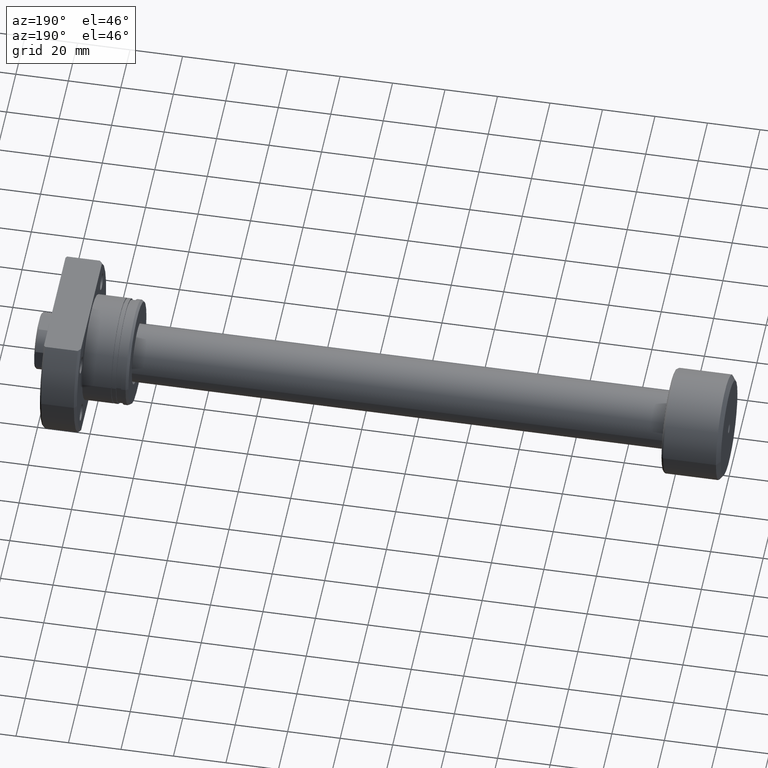
[diagram: clean part render]
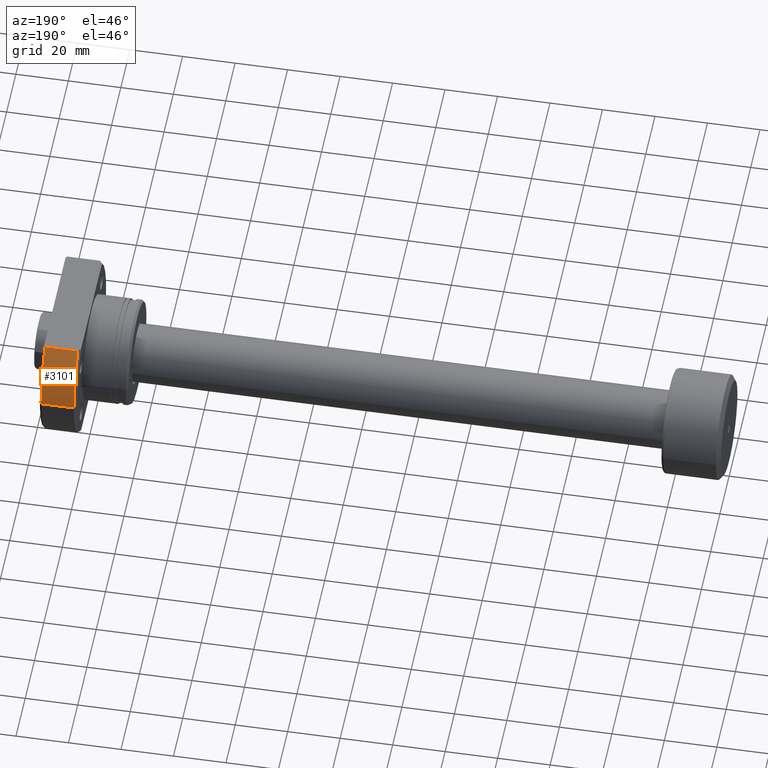
[diagram: same view with one face highlighted and labeled with its STEP entity id]
A machine part, auxiliary view. The second image highlights one B-rep face of the part: STEP entity #3101.
In plain terms, the highlighted cylindrical surface (partial cylindrical patch) has radius 32.5 mm, axis along (1, 0, 0).
Its self-contained STEP definition (entity closure, byte-faithful):
#171 = ORIENTED_EDGE ( 'NONE', *, *, #661, .T. ) ;
#202 = CARTESIAN_POINT ( 'NONE',  ( -2.498001805406602216E-13, 23.92174742781216423, 21.99999999999998934 ) ) ;
#232 = EDGE_CURVE ( 'NONE', #1136, #3097, #1863, .T. ) ;
#296 = DIRECTION ( 'NONE',  ( 0.000000000000000000, 1.000000000000000000, 0.000000000000000000 ) ) ;
#610 = CARTESIAN_POINT ( 'NONE',  ( 31.00000000000008171, 32.49999999999990763, 0.000000000000000000 ) ) ;
#625 = VECTOR ( 'NONE', #3161, 1000.000000000000000 ) ;
#648 = CARTESIAN_POINT ( 'NONE',  ( 31.50000000000000000, 32.49999999999990763, 0.000000000000000000 ) ) ;
#661 = EDGE_CURVE ( 'NONE', #668, #3097, #2165, .T. ) ;
#668 = VERTEX_POINT ( 'NONE', #1191 ) ;
#737 = VECTOR ( 'NONE', #2373, 1000.000000000000000 ) ;
#774 = EDGE_CURVE ( 'NONE', #1410, #1136, #1128, .T. ) ;
#965 = CARTESIAN_POINT ( 'NONE',  ( 31.00000000000008171, 8.436455727459560039E-16, 0.000000000000000000 ) ) ;
#1128 = LINE ( 'NONE', #648, #737 ) ;
#1136 = VERTEX_POINT ( 'NONE', #610 ) ;
#1150 = EDGE_LOOP ( 'NONE', ( #2910, #2595, #171, #1411 ) ) ;
#1191 = CARTESIAN_POINT ( 'NONE',  ( 18.49999999999998934, 23.92174742781163133, 21.99999999999998934 ) ) ;
#1272 = EDGE_CURVE ( 'NONE', #1410, #668, #2908, .T. ) ;
#1410 = VERTEX_POINT ( 'NONE', #3009 ) ;
#1411 = ORIENTED_EDGE ( 'NONE', *, *, #232, .F. ) ;
#1526 = DIRECTION ( 'NONE',  ( 1.000000000000000000, 2.721437331438560389E-17, -0.000000000000000000 ) ) ;
#1644 = DIRECTION ( 'NONE',  ( 1.000000000000000000, 2.721437331438560389E-17, -0.000000000000000000 ) ) ;
#1696 = CARTESIAN_POINT ( 'NONE',  ( 31.50000000000000000, 8.572527594031465301E-16, 0.000000000000000000 ) ) ;
#1863 = CIRCLE ( 'NONE', #2429, 32.49999999999990763 ) ;
#1971 = DIRECTION ( 'NONE',  ( 1.000000000000000000, 2.721437331438560389E-17, -0.000000000000000000 ) ) ;
#2165 = LINE ( 'NONE', #202, #625 ) ;
#2373 = DIRECTION ( 'NONE',  ( 1.000000000000000000, 2.721437331438560389E-17, -0.000000000000000000 ) ) ;
#2429 = AXIS2_PLACEMENT_3D ( 'NONE', #965, #1971, #2436 ) ;
#2436 = DIRECTION ( 'NONE',  ( 0.000000000000000000, 1.000000000000000000, 0.000000000000000000 ) ) ;
#2595 = ORIENTED_EDGE ( 'NONE', *, *, #1272, .T. ) ;
#2607 = AXIS2_PLACEMENT_3D ( 'NONE', #1696, #1644, #2691 ) ;
#2655 = CYLINDRICAL_SURFACE ( 'NONE', #2607, 32.49999999999990763 ) ;
#2691 = DIRECTION ( 'NONE',  ( 0.000000000000000000, 1.000000000000000000, 0.000000000000000000 ) ) ;
#2757 = CARTESIAN_POINT ( 'NONE',  ( 18.49999999999998934, 5.034659063161333869E-16, 0.000000000000000000 ) ) ;
#2761 = AXIS2_PLACEMENT_3D ( 'NONE', #2757, #1526, #296 ) ;
#2859 = FACE_OUTER_BOUND ( 'NONE', #1150, .T. ) ;
#2908 = CIRCLE ( 'NONE', #2761, 32.49999999999990763 ) ;
#2910 = ORIENTED_EDGE ( 'NONE', *, *, #774, .F. ) ;
#2928 = CARTESIAN_POINT ( 'NONE',  ( 31.00000000000007461, 23.92174742781126895, 21.99999999999998934 ) ) ;
#3009 = CARTESIAN_POINT ( 'NONE',  ( 18.49999999999998934, 32.49999999999990763, 0.000000000000000000 ) ) ;
#3097 = VERTEX_POINT ( 'NONE', #2928 ) ;
#3101 = ADVANCED_FACE ( 'NONE', ( #2859 ), #2655, .T. ) ;
#3161 = DIRECTION ( 'NONE',  ( 1.000000000000000000, -2.886466111666351885E-14, -0.000000000000000000 ) ) ;